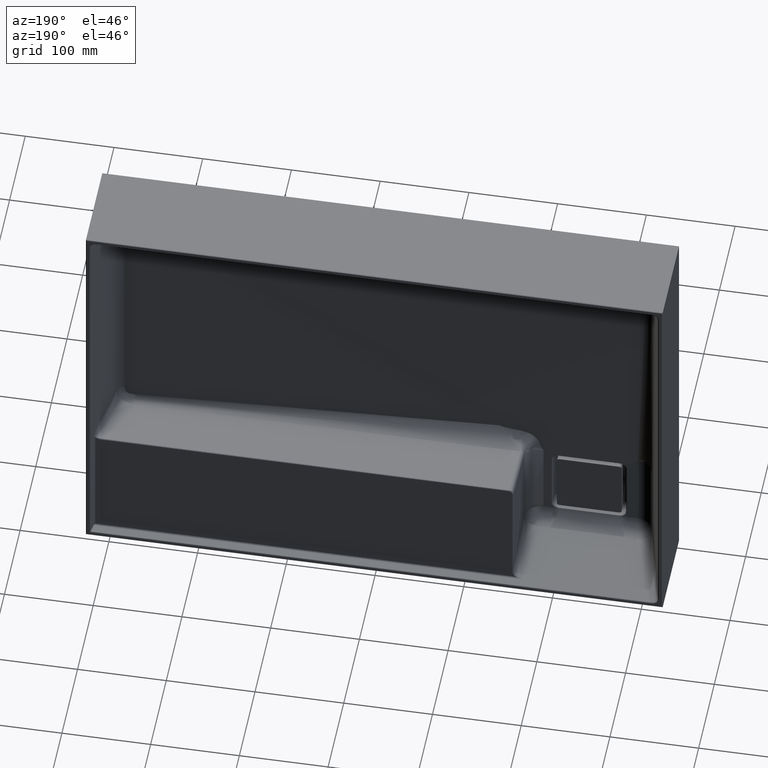
[diagram: clean part render]
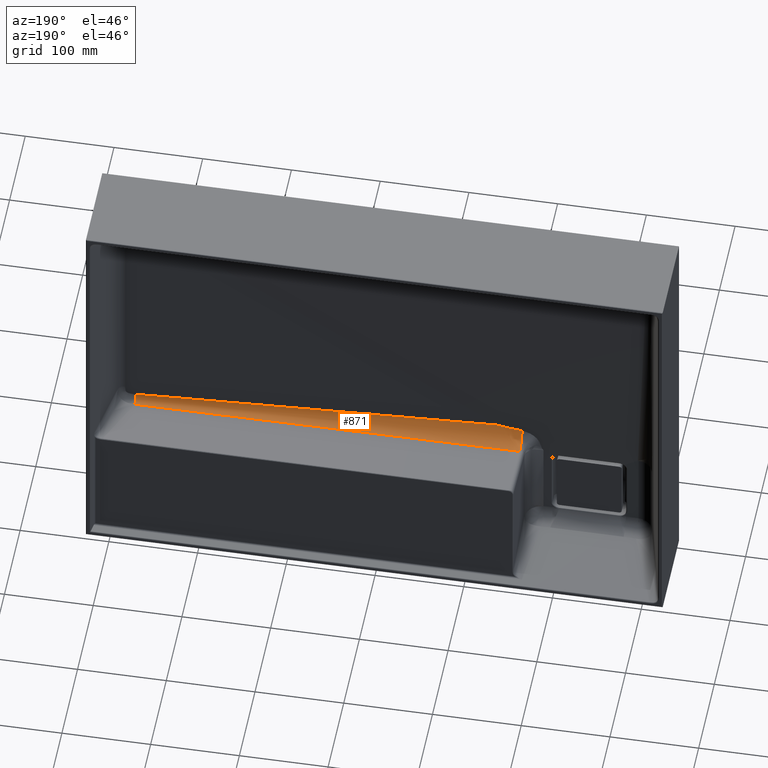
[diagram: same view with one face highlighted and labeled with its STEP entity id]
A machine part, auxiliary view. The second image highlights one B-rep face of the part: STEP entity #871.
In plain terms, the highlighted face is a freeform B-spline surface patch.
Its self-contained STEP definition (entity closure, byte-faithful):
#279 = CARTESIAN_POINT ( 'NONE',  ( -151.0187278054318938, 16.62295681140372494, -74.04962445748694222 ) ) ;
#295 = CARTESIAN_POINT ( 'NONE',  ( -151.1386401213812292, 20.13293183827108379, -88.03953682500197431 ) ) ;
#308 = CARTESIAN_POINT ( 'NONE',  ( -151.5847807437794472, 34.54509622757816345, -88.41693263134260405 ) ) ;
#529 = CARTESIAN_POINT ( 'NONE',  ( 281.6846168019783363, 37.23080736173686489, -88.48726045245915373 ) ) ;
#809 = CARTESIAN_POINT ( 'NONE',  ( -151.0187278054318938, 16.62295681140372494, -74.04962445748694222 ) ) ;
#823 = B_SPLINE_CURVE_WITH_KNOTS ( 'NONE', 3,
 ( #10712, #10703, #10701, #10699 ),
 .UNSPECIFIED., .F., .F.,
 ( 4, 4 ),
 ( -0.4346882425457793686, -0.001543048426497328762 ),
 .UNSPECIFIED. ) ;
#871 = ADVANCED_FACE ( 'NONE', ( #6022 ), #1533, .T. ) ;
#1195 = CARTESIAN_POINT ( 'NONE',  ( 137.6130180137260766, 24.97959506826790133, -88.16645116821491968 ) ) ;
#1492 = CARTESIAN_POINT ( 'NONE',  ( 281.9319754812725023, 29.44404800740610284, -80.49000185265470009 ) ) ;
#1532 = CARTESIAN_POINT ( 'NONE',  ( -151.5847807437794472, 34.54509622757816345, -88.41693263134260405 ) ) ;
#1533 =( BOUNDED_SURFACE ( )  B_SPLINE_SURFACE ( 2, 3, ( 
 ( #1492, #9738, #2003, #4619 ),
 ( #5711, #1195, #1853, #8166 ),
 ( #529, #9253, #9342, #5056 ) ),
 .UNSPECIFIED., .F., .F., .F. ) 
 B_SPLINE_SURFACE_WITH_KNOTS ( ( 3, 3 ),
 ( 4, 4 ),
 ( 0.0000000000000000000, 1.000000000000000000 ),
 ( -0.4346882425457793686, -0.001543048426497325726 ),
 .UNSPECIFIED. ) 
 GEOMETRIC_REPRESENTATION_ITEM ( )  RATIONAL_B_SPLINE_SURFACE ( (
 ( 1.000000000000000000, 1.000000000000000000, 1.000000000000000000, 1.000000000000000000),
 ( 0.7162975751252874668, 0.7162975751252874668, 0.7162975751252874668, 0.7162975751252874668),
 ( 1.000000000000000000, 1.000000000000000000, 1.000000000000000000, 1.000000000000000000) ) ) 
 REPRESENTATION_ITEM ( '' )  SURFACE ( )  );
#1720 = VERTEX_POINT ( 'NONE', #4911 ) ;
#1853 = CARTESIAN_POINT ( 'NONE',  ( -6.699632472984718312, 20.51533723322151559, -88.04955046268176488 ) ) ;
#1912 = VERTEX_POINT ( 'NONE', #3255 ) ;
#2003 = CARTESIAN_POINT ( 'NONE',  ( -6.684653393500041396, 20.51580060543957984, -69.54034416258500073 ) ) ;
#2446 = EDGE_LOOP ( 'NONE', ( #10084, #2486, #3793, #6500, #9699 ) ) ;
#2486 = ORIENTED_EDGE ( 'NONE', *, *, #5822, .F. ) ;
#2642 = EDGE_CURVE ( 'NONE', #1912, #3935, #8302, .T. ) ;
#2814 = CARTESIAN_POINT ( 'NONE',  ( 281.9319754812725023, 29.44404800740610284, -80.49000185265470009 ) ) ;
#2889 = VERTEX_POINT ( 'NONE', #1532 ) ;
#2965 = VERTEX_POINT ( 'NONE', #809 ) ;
#3174 = CARTESIAN_POINT ( 'NONE',  ( 281.9319754812725023, 29.44404800740610284, -80.49000185265470009 ) ) ;
#3186 = CARTESIAN_POINT ( 'NONE',  ( 281.9311421262176509, 29.44402222787936196, -81.51975412069232618 ) ) ;
#3202 = CARTESIAN_POINT ( 'NONE',  ( 281.9240862386012623, 29.64515742350289429, -82.54912746399523371 ) ) ;
#3211 = CARTESIAN_POINT ( 'NONE',  ( 281.8985585372915352, 30.42041311969389739, -84.45697668672872283 ) ) ;
#3212 = CARTESIAN_POINT ( 'NONE',  ( 281.8800961171950803, 30.99424834430892872, -85.33475052229587732 ) ) ;
#3240 = CARTESIAN_POINT ( 'NONE',  ( 281.8344669809553693, 32.43063660618713584, -86.80996862744507325 ) ) ;
#3255 = CARTESIAN_POINT ( 'NONE',  ( 281.6846168019387733, 37.23080736165225346, -88.48726045245695104 ) ) ;
#3256 = CARTESIAN_POINT ( 'NONE',  ( 281.8073170552666511, 33.29266108618655551, -87.40687005128978626 ) ) ;
#3270 = CARTESIAN_POINT ( 'NONE',  ( 281.7483064508005555, 35.17863985776733671, -88.23219637245185254 ) ) ;
#3272 = CARTESIAN_POINT ( 'NONE',  ( 281.7164674865445022, 36.20190015329935562, -88.46031756899847664 ) ) ;
#3317 = CARTESIAN_POINT ( 'NONE',  ( 281.6846168019387733, 37.23080736165225346, -88.48726045245695104 ) ) ;
#3793 = ORIENTED_EDGE ( 'NONE', *, *, #2642, .F. ) ;
#3935 = VERTEX_POINT ( 'NONE', #2814 ) ;
#4439 = B_SPLINE_CURVE_WITH_KNOTS ( 'NONE', 3,
 ( #9648, #9633, #9606, #9594, #9583, #9571, #9557, #9534, #9515, #9512, #9499, #9485, #9476, #9460, #9459, #9434, #9422, #9410, #9407, #9397 ),
 .UNSPECIFIED., .F., .F.,
 ( 4, 2, 2, 2, 2, 2, 2, 2, 2, 4 ),
 ( 0.0000000000000000000, 0.0008055719474762028983, 0.001611143894952405797, 0.003222287789904811593, 0.004833431684857216956, 0.006444575579809623186, 0.009666863369714433912, 0.01288915115961924637, 0.01933372673942886782, 0.02577830231923849275 ),
 .UNSPECIFIED. ) ;
#4619 = CARTESIAN_POINT ( 'NONE',  ( -150.9973038802108363, 16.05154277039319410, -69.42344345705187436 ) ) ;
#4911 = CARTESIAN_POINT ( 'NONE',  ( -125.6727039073530250, 16.83494979304126815, -69.54966624635412131 ) ) ;
#5056 = CARTESIAN_POINT ( 'NONE',  ( -151.5847807435345942, 34.54509623692874243, -88.41693263158747129 ) ) ;
#5513 = EDGE_CURVE ( 'NONE', #2889, #1912, #823, .T. ) ;
#5711 = CARTESIAN_POINT ( 'NONE',  ( 281.9256685004368705, 29.44385290331428706, -88.28335187374806026 ) ) ;
#5822 = EDGE_CURVE ( 'NONE', #3935, #1720, #9690, .T. ) ;
#6022 = FACE_OUTER_BOUND ( 'NONE', #2446, .T. ) ;
#6500 = ORIENTED_EDGE ( 'NONE', *, *, #5513, .F. ) ;
#8166 = CARTESIAN_POINT ( 'NONE',  ( -151.0122829596955114, 16.05107939817512630, -87.93264975714865272 ) ) ;
#8302 = B_SPLINE_CURVE_WITH_KNOTS ( 'NONE', 3,
 ( #3317, #3272, #3270, #3256, #3240, #3212, #3211, #3202, #3186, #3174 ),
 .UNSPECIFIED., .F., .F.,
 ( 4, 2, 2, 2, 4 ),
 ( 0.0000000000000000000, 0.2500000000000000000, 0.5000000000000000000, 0.7500000000000000000, 1.000000000000000000 ),
 .UNSPECIFIED. ) ;
#8458 = EDGE_CURVE ( 'NONE', #1720, #2965, #4439, .T. ) ;
#9253 = CARTESIAN_POINT ( 'NONE',  ( 137.3719663152675139, 32.76654952669047560, -88.37035974692599893 ) ) ;
#9279 = EDGE_CURVE ( 'NONE', #2889, #2965, #9640, .T. ) ;
#9342 = CARTESIAN_POINT ( 'NONE',  ( -7.272130256823794880, 39.00935407197513172, -88.53383333712059766 ) ) ;
#9397 = CARTESIAN_POINT ( 'NONE',  ( -151.0187278054318938, 16.62295681140372494, -74.04962445748694222 ) ) ;
#9400 = CARTESIAN_POINT ( 'NONE',  ( -125.6727039073530250, 16.83494979304126815, -69.54966624635412131 ) ) ;
#9406 = CARTESIAN_POINT ( 'NONE',  ( 10.19748541166777400, 21.03804325138316145, -70.77100139095838927 ) ) ;
#9407 = CARTESIAN_POINT ( 'NONE',  ( -148.8765483860703398, 16.63335465511631384, -73.82891025350212999 ) ) ;
#9410 = CARTESIAN_POINT ( 'NONE',  ( -146.7355162878731960, 16.64432375271441700, -73.59607008858682775 ) ) ;
#9412 = CARTESIAN_POINT ( 'NONE',  ( 146.0608868346715497, 25.24092672870207821, -80.37993924850478322 ) ) ;
#9415 = CARTESIAN_POINT ( 'NONE',  ( 281.9319754812725023, 29.44404800740610284, -80.49000185265470009 ) ) ;
#9422 = CARTESIAN_POINT ( 'NONE',  ( -142.4584472360638756, 16.66807916955445990, -73.09181573902066020 ) ) ;
#9434 = CARTESIAN_POINT ( 'NONE',  ( -140.3228345796003396, 16.68082966509644294, -72.82116198120795048 ) ) ;
#9459 = CARTESIAN_POINT ( 'NONE',  ( -137.1276669657438845, 16.70242016268817409, -72.36286220085736431 ) ) ;
#9460 = CARTESIAN_POINT ( 'NONE',  ( -136.0640083194164731, 16.71003435813470972, -72.20123627788525766 ) ) ;
#9476 = CARTESIAN_POINT ( 'NONE',  ( -133.9409624441327367, 16.72653865753397895, -71.85090082325338301 ) ) ;
#9485 = CARTESIAN_POINT ( 'NONE',  ( -132.8815094718893306, 16.73540912341068676, -71.66260814747619179 ) ) ;
#9499 = CARTESIAN_POINT ( 'NONE',  ( -131.2978884602723326, 16.75037517729560221, -71.34492490840166568 ) ) ;
#9512 = CARTESIAN_POINT ( 'NONE',  ( -130.7709554818957542, 16.75564485463137387, -71.23306588545689522 ) ) ;
#9515 = CARTESIAN_POINT ( 'NONE',  ( -129.7198708462865682, 16.76701501345946355, -70.99171242561544659 ) ) ;
#9534 = CARTESIAN_POINT ( 'NONE',  ( -129.1951356193167442, 16.77311449770706631, -70.86223915715321198 ) ) ;
#9557 = CARTESIAN_POINT ( 'NONE',  ( -128.1566285722620364, 16.78659769777852517, -70.57603233839324730 ) ) ;
#9571 = CARTESIAN_POINT ( 'NONE',  ( -127.6420301557782153, 16.79394609893987678, -70.42004840963625156 ) ) ;
#9583 = CARTESIAN_POINT ( 'NONE',  ( -126.8851095079248381, 16.80692097510649674, -70.14463174209674889 ) ) ;
#9594 = CARTESIAN_POINT ( 'NONE',  ( -126.6353241518365138, 16.81157461910319739, -70.04584920999164410 ) ) ;
#9606 = CARTESIAN_POINT ( 'NONE',  ( -126.1447386451466315, 16.82205314392367868, -69.82342239452702870 ) ) ;
#9633 = CARTESIAN_POINT ( 'NONE',  ( -125.9034338818812131, 16.82781224762793215, -69.70117435686783836 ) ) ;
#9640 =( BOUNDED_CURVE ( )  B_SPLINE_CURVE ( 2, ( #308, #295, #279 ),
 .UNSPECIFIED., .F., .T. ) 
 B_SPLINE_CURVE_WITH_KNOTS ( ( 3, 3 ),
 ( 0.0000000000000000000, 1.000000000000000000 ),
 .UNSPECIFIED. ) 
 CURVE ( )  GEOMETRIC_REPRESENTATION_ITEM ( )  RATIONAL_B_SPLINE_CURVE ( ( 1.000000000000000000, 0.7641457412185792553, 0.9204434452545313672 ) ) 
 REPRESENTATION_ITEM ( '' )  );
#9648 = CARTESIAN_POINT ( 'NONE',  ( -125.6727039073530250, 16.83494979304126815, -69.54966624635412131 ) ) ;
#9690 = B_SPLINE_CURVE_WITH_KNOTS ( 'NONE', 3,
 ( #9415, #9412, #9406, #9400 ),
 .UNSPECIFIED., .F., .F.,
 ( 4, 4 ),
 ( -0.4346882425457793686, -0.02687985659662373017 ),
 .UNSPECIFIED. ) ;
#9699 = ORIENTED_EDGE ( 'NONE', *, *, #9279, .T. ) ;
#9738 = CARTESIAN_POINT ( 'NONE',  ( 137.6193249945617367, 24.97979017235971355, -80.37310114712155951 ) ) ;
#10084 = ORIENTED_EDGE ( 'NONE', *, *, #8458, .F. ) ;
#10699 = CARTESIAN_POINT ( 'NONE',  ( 281.6846168019387733, 37.23080736165225346, -88.48726045245695104 ) ) ;
#10701 = CARTESIAN_POINT ( 'NONE',  ( 137.3719663152675139, 32.76654952669047560, -88.37035974692599893 ) ) ;
#10703 = CARTESIAN_POINT ( 'NONE',  ( -7.272130256823794880, 39.00935407197513172, -88.53383333712059766 ) ) ;
#10712 = CARTESIAN_POINT ( 'NONE',  ( -151.5847807437794472, 34.54509622757816345, -88.41693263134260405 ) ) ;